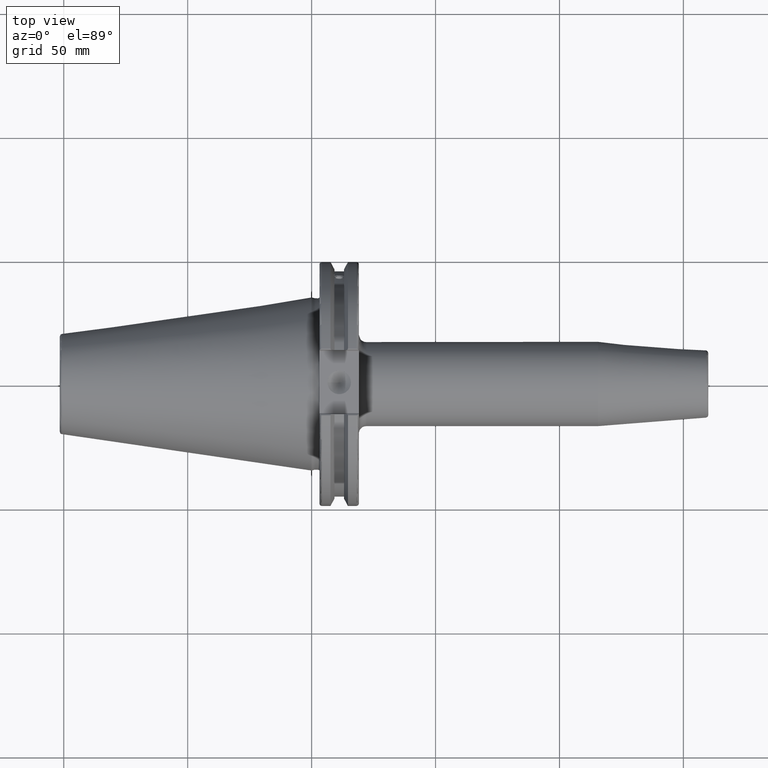
[diagram: clean part render]
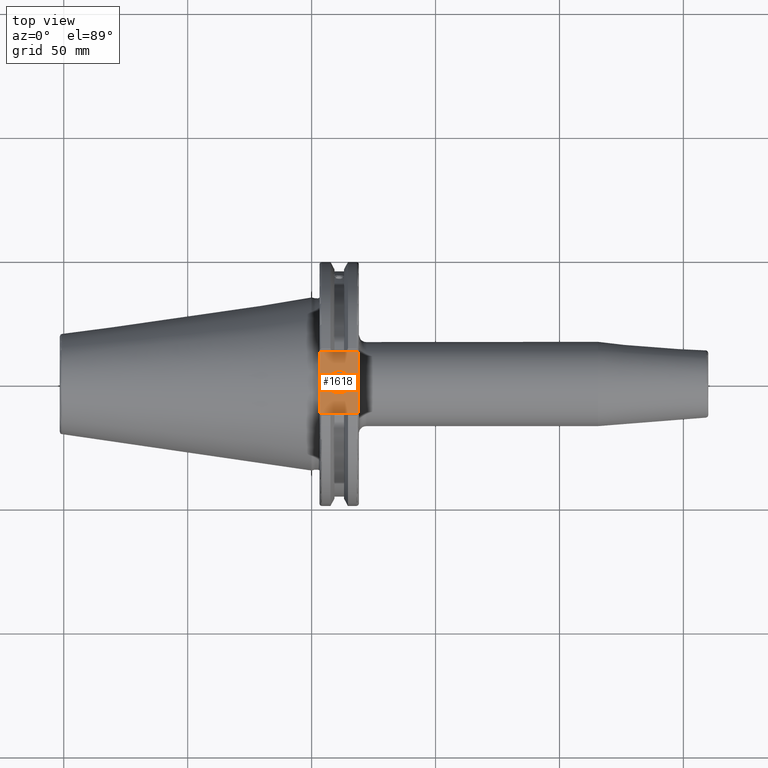
[diagram: same view with one face highlighted and labeled with its STEP entity id]
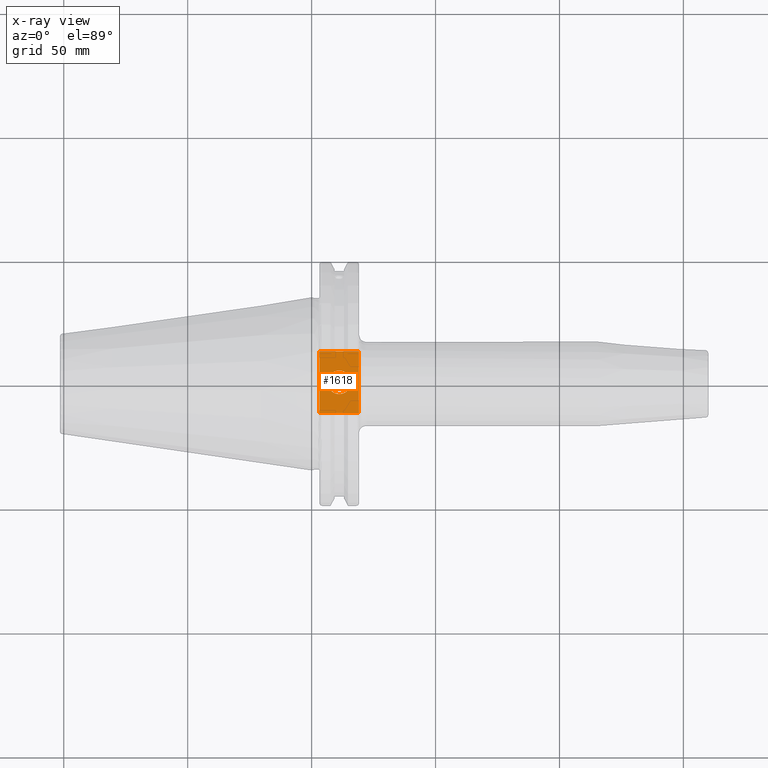
[diagram: x-ray of the same camera — body ghosted, the highlighted face saturated]
A machine part, top view. The second image highlights one B-rep face of the part: STEP entity #1618.
The next image is the same camera in x-ray: the body ghosted, the highlighted face saturated — about 0% of this face is hidden behind the body in this view.
In plain terms, the highlighted planar face has unit normal (0, 0, 1).
Its self-contained STEP definition (entity closure, byte-faithful):
#90=LINE('',#2327,#188);
#138=LINE('',#2940,#236);
#166=LINE('',#3169,#264);
#168=LINE('',#3172,#266);
#188=VECTOR('',#1883,10.);
#236=VECTOR('',#2097,10.);
#264=VECTOR('',#2191,10.);
#266=VECTOR('',#2195,10.);
#331=FACE_BOUND('',#570,.T.);
#370=PLANE('',#1812);
#457=FACE_OUTER_BOUND('',#569,.T.);
#569=EDGE_LOOP('',(#1487,#1488,#1489,#1490));
#570=EDGE_LOOP('',(#1491));
#651=CIRCLE('',#1804,4.7625);
#676=VERTEX_POINT('',#2324);
#677=VERTEX_POINT('',#2326);
#768=VERTEX_POINT('',#2937);
#769=VERTEX_POINT('',#2939);
#815=VERTEX_POINT('',#3208);
#840=EDGE_CURVE('',#676,#677,#90,.T.);
#961=EDGE_CURVE('',#768,#769,#138,.T.);
#1024=EDGE_CURVE('',#677,#768,#166,.T.);
#1026=EDGE_CURVE('',#769,#676,#168,.T.);
#1041=EDGE_CURVE('',#815,#815,#651,.T.);
#1487=ORIENTED_EDGE('',*,*,#1024,.F.);
#1488=ORIENTED_EDGE('',*,*,#840,.F.);
#1489=ORIENTED_EDGE('',*,*,#1026,.F.);
#1490=ORIENTED_EDGE('',*,*,#961,.F.);
#1491=ORIENTED_EDGE('',*,*,#1041,.T.);
#1618=ADVANCED_FACE('',(#457,#331),#370,.T.);
#1804=AXIS2_PLACEMENT_3D('',#3209,#2230,#2231);
#1812=AXIS2_PLACEMENT_3D('',#3218,#2247,#2248);
#1883=DIRECTION('',(0.,-1.,0.));
#2097=DIRECTION('',(0.,1.,0.));
#2191=DIRECTION('',(-1.,1.31581988103722E-16,0.));
#2195=DIRECTION('',(1.,0.,0.));
#2230=DIRECTION('center_axis',(0.,0.,-1.));
#2231=DIRECTION('ref_axis',(1.,0.,0.));
#2247=DIRECTION('center_axis',(0.,0.,1.));
#2248=DIRECTION('ref_axis',(1.,0.,0.));
#2324=CARTESIAN_POINT('',(19.05,12.45,37.719));
#2326=CARTESIAN_POINT('',(19.05,-12.45,37.719));
#2327=CARTESIAN_POINT('',(19.05,0.,37.719));
#2937=CARTESIAN_POINT('',(3.175,-12.45,37.719));
#2939=CARTESIAN_POINT('',(3.175,12.45,37.719));
#2940=CARTESIAN_POINT('',(3.175,24.60625,37.719));
#3169=CARTESIAN_POINT('',(10.63125,-12.45,37.719));
#3172=CARTESIAN_POINT('',(19.06875,12.45,37.719));
#3208=CARTESIAN_POINT('',(6.3716,-5.83238038093927E-16,37.719));
#3209=CARTESIAN_POINT('Origin',(11.1341,0.,37.719));
#3218=CARTESIAN_POINT('Origin',(18.0875,0.,37.719));